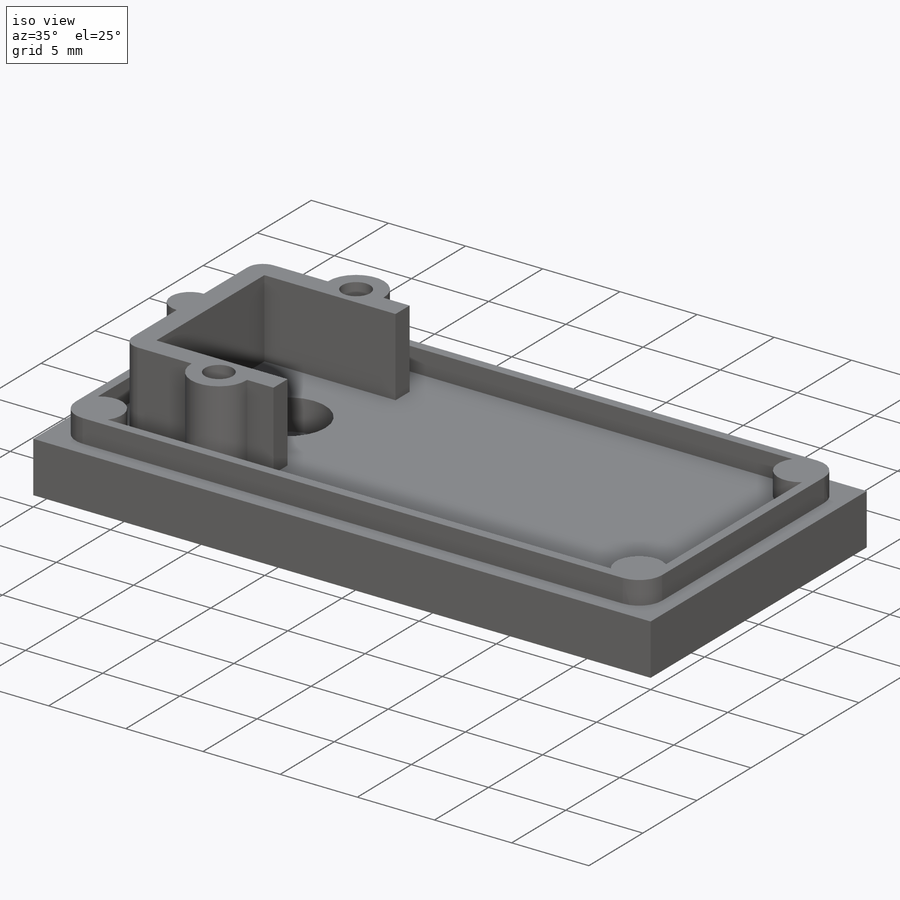
[diagram: iso view]
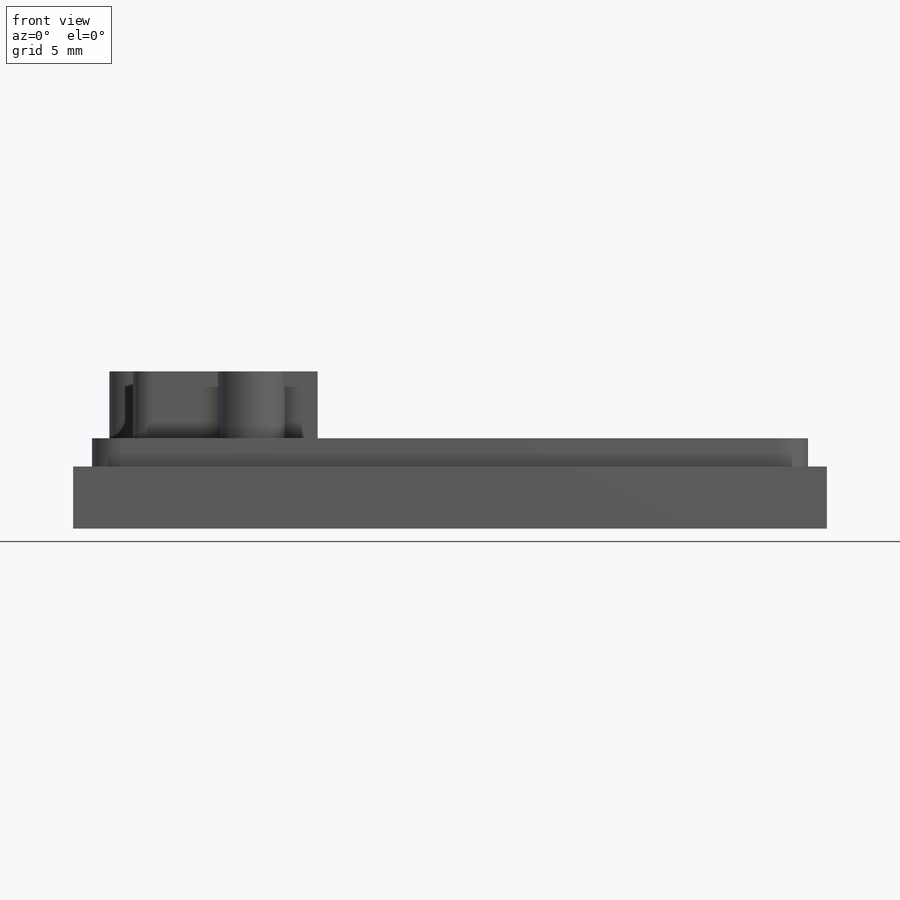
[diagram: front view]
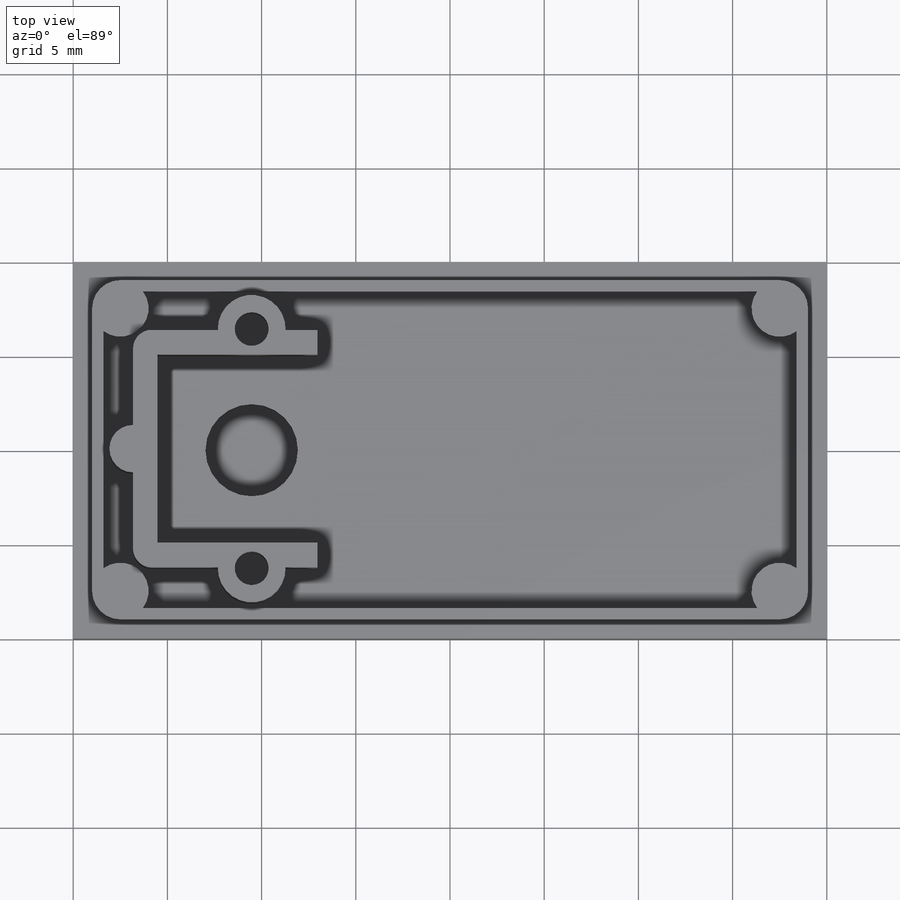
[diagram: top view]
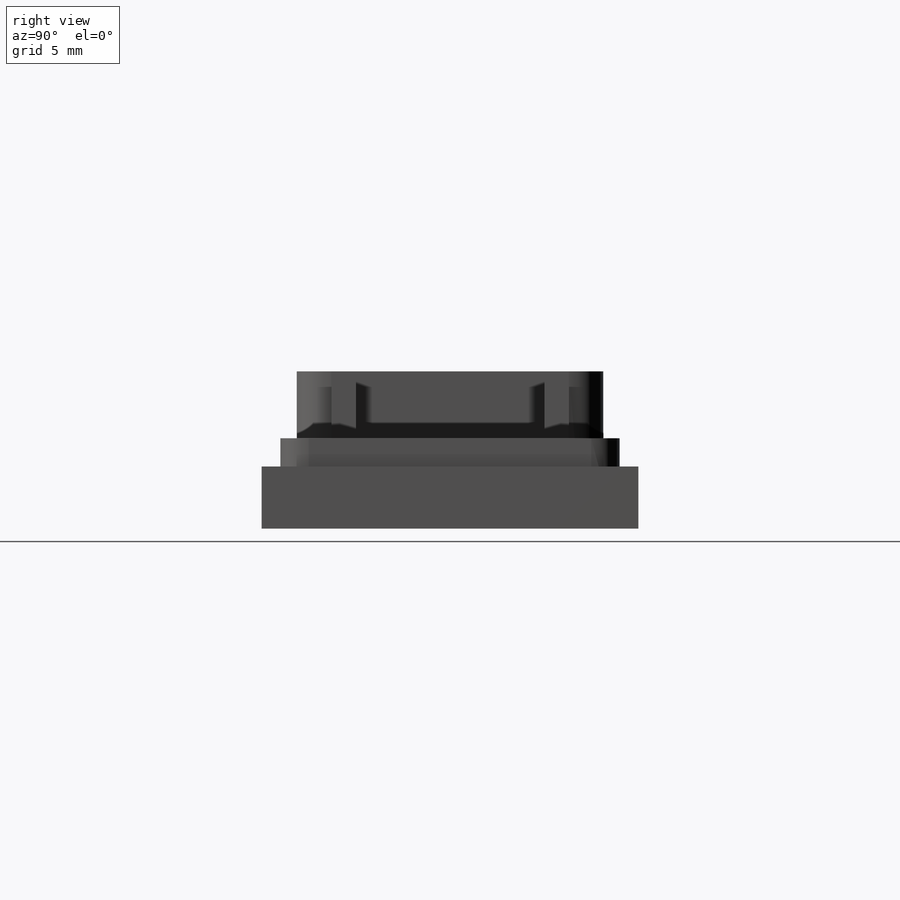
[diagram: right view]
SOLIDWORKS PART (.sldprt)
format: sldprt  version: not decoded by parser v0  size: 255,488 bytes
history: native  units: mm
features: sketch x5, extrude x3, cut_extrude x2, material x1 (+16 scaffold rows collapsed)
feature tree (27):
  scaffold x16  (default folders/planes/origin — collapsed)
  material  "Material <not specified>"
  sketch  "Sketch1"  dims[D1=20.0mm D2=40.0mm]
  extrude  "Boss-Extrude1"  Depth=3.3mm
  sketch  "Sketch2"  dims[D3=3.0mm D4=3.0mm D5=3.0mm D6=3.0mm D1=1.0mm D2=1.6mm]
  extrude  "Boss-Extrude2"  Depth=1.5mm
  sketch  "Sketch3"  dims[D1=4.9mm]
  cut_extrude  "Cut-Extrude1"  Depth=2mm
  sketch  "Sketch4"  dims[D4=1.0mm D6=2.5mm D9=3.6mm D10=3.6mm D1=10.0mm D2=5.0mm D5=3.5mm D7=1.3mm D8=12.7mm D3=1.3mm]
  extrude  "Boss-Extrude3"  Depth=5.05mm
  sketch  "Sketch5"  dims[D1=1.8mm D2=1.8mm]
  cut_extrude  "Cut-Extrude2"  Depth=4mm
decode coverage: 10 of 10 modeling features carry decoded parameters
note: suppression state not decoded; provenance and decode notes live in map.json
